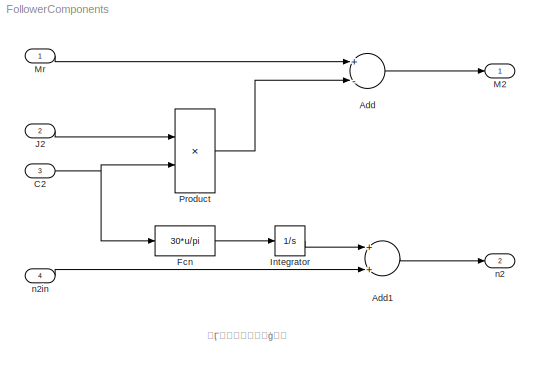
MODEL FollowerComponents
KIND model
BLOCK [Sum] Add
  InputSameDT = off
  Inputs = +-
  OutDataTypeStr = Inherit: Inherit via internal rule
  Ports = [2, 1]
  SID = 10
  SaturateOnIntegerOverflow = off
BLOCK [Sum] Add1
  InputSameDT = off
  OutDataTypeStr = Inherit: Inherit via internal rule
  Ports = [2, 1]
  SID = 12
  SaturateOnIntegerOverflow = off
BLOCK [Inport] C2
  IconDisplay = Port number
  Port = 3
  SID = 3
BLOCK [Fcn] Fcn
  Expr = 30*u/pi
  SID = 6
BLOCK [Integrator] Integrator
  Ports = [1, 1]
  SID = 7
BLOCK [Inport] J2
  IconDisplay = Port number
  Port = 2
  SID = 2
BLOCK [Outport] M2
  IconDisplay = Port number
  SID = 8
BLOCK [Inport] Mr
  IconDisplay = Port number
  SID = 1
BLOCK [Product] Product
  InputSameDT = off
  OutDataTypeStr = Inherit: Inherit via internal rule
  Ports = [2, 1]
  RndMeth = Floor
  SID = 5
  SaturateOnIntegerOverflow = off
BLOCK [Outport] n2
  IconDisplay = Port number
  Port = 2
  SID = 9
BLOCK [Inport] n2in
  IconDisplay = Port number
  Port = 4
  SID = 4
ANNOTATION (root): \n \n 从动件仿真模型
LINE Add1:1 -> n2:1
LINE Add:1 -> M2:1
NET C2:1 -> Fcn:1, Product:2
LINE Fcn:1 -> Integrator:1
LINE Integrator:1 -> Add1:1
LINE J2:1 -> Product:1
LINE Mr:1 -> Add:1
LINE Product:1 -> Add:2
LINE n2in:1 -> Add1:2
note: NET lines group one-source signal fan-out (src -> all destinations, sorted); 1:1 wires keep LINE
